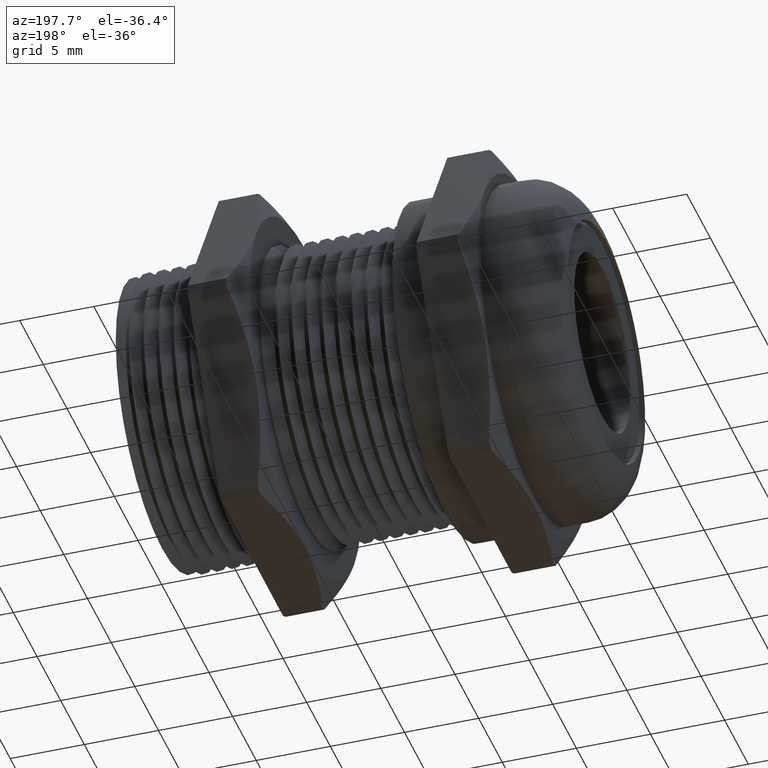
[diagram: clean part render]
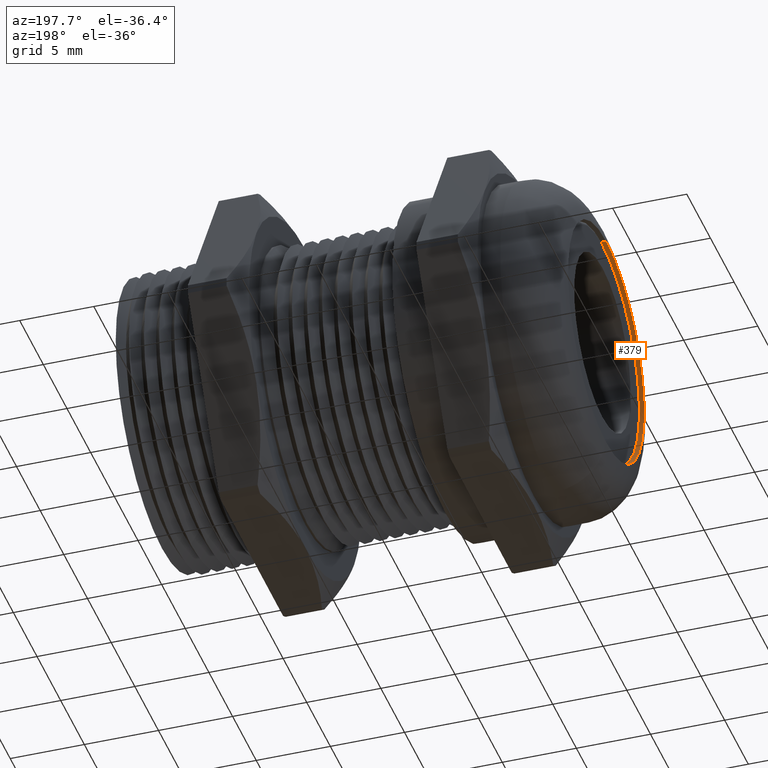
[diagram: same view with one face highlighted and labeled with its STEP entity id]
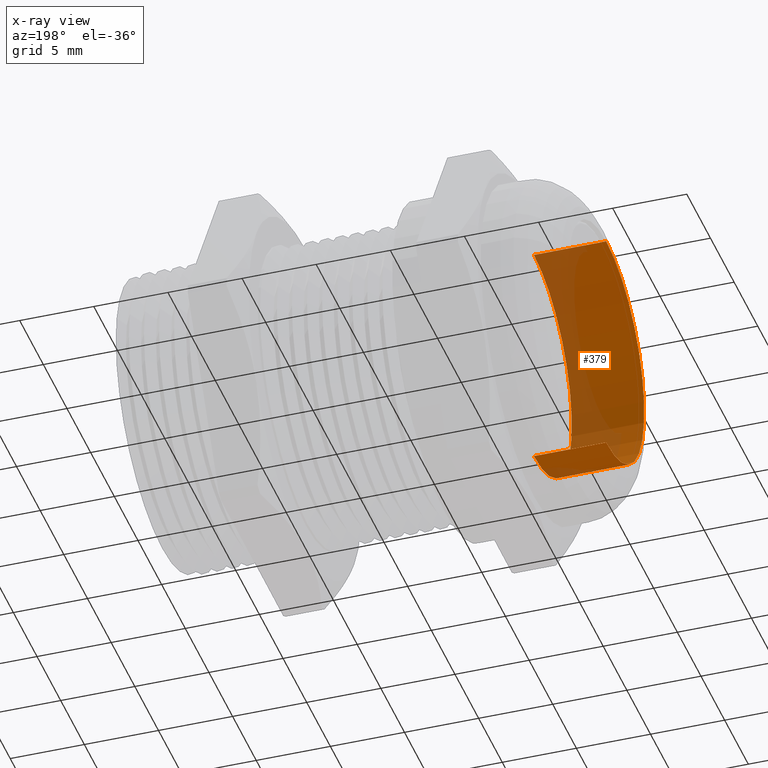
[diagram: x-ray of the same camera — body ghosted, the highlighted face saturated]
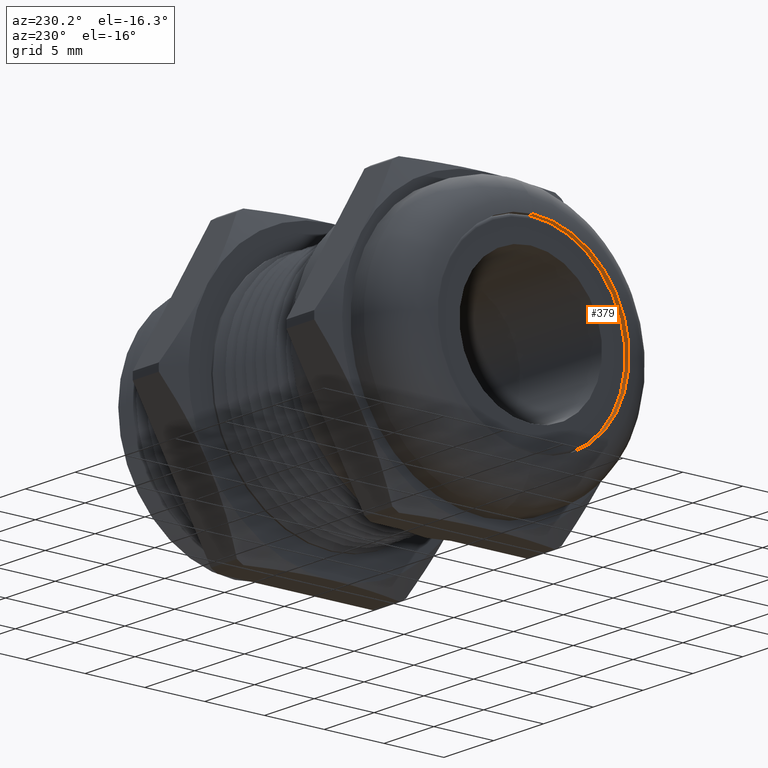
[diagram: same view with one face highlighted and labeled with its STEP entity id]
A machine part, auxiliary view. The second image highlights one B-rep face of the part: STEP entity #379.
The next image is the same camera in x-ray: the body ghosted, the highlighted face saturated — about 33% of this face is hidden behind the body in this view.
A second angle (auxiliary view) of the same face is appended — the face is thin or edge-on in the first view.
In plain terms, the highlighted cylindrical surface (partial cylindrical patch) has radius 8.0264 mm, axis along (-1, 0, 0).
Its self-contained STEP definition (entity closure, byte-faithful):
#289 = VERTEX_POINT ( 'NONE', #1472 ) ;
#292 = VERTEX_POINT ( 'NONE', #1466 ) ;
#379 = ADVANCED_FACE ( 'NONE', ( #1659 ), #1658, .F. ) ;
#380 = ORIENTED_EDGE ( 'NONE', *, *, #381, .F. ) ;
#381 = EDGE_CURVE ( 'NONE', #382, #383, #1653, .T. ) ;
#382 = VERTEX_POINT ( 'NONE', #1649 ) ;
#383 = VERTEX_POINT ( 'NONE', #1648 ) ;
#384 = ORIENTED_EDGE ( 'NONE', *, *, #385, .T. ) ;
#385 = EDGE_CURVE ( 'NONE', #382, #289, #1712, .T. ) ;
#449 = ORIENTED_EDGE ( 'NONE', *, *, #450, .T. ) ;
#450 = EDGE_CURVE ( 'NONE', #289, #292, #1786, .T. ) ;
#451 = ORIENTED_EDGE ( 'NONE', *, *, #452, .F. ) ;
#452 = EDGE_CURVE ( 'NONE', #383, #292, #1781, .T. ) ;
#471 = EDGE_LOOP ( 'NONE', ( #380, #384, #449, #451 ) ) ;
#1466 = CARTESIAN_POINT ( 'NONE',  ( -0.5899999999999999700, 0.0000000000000000000, 0.3160000000000000600 ) ) ;
#1472 = CARTESIAN_POINT ( 'NONE',  ( -0.5899999999999999700, 3.869883885305636800E-017, -0.3160000000000000600 ) ) ;
#1648 = CARTESIAN_POINT ( 'NONE',  ( -0.3979999999999999600, 0.0000000000000000000, 0.3160000000000000600 ) ) ;
#1649 = CARTESIAN_POINT ( 'NONE',  ( -0.3979999999999999600, 3.869883885305636800E-017, -0.3160000000000000600 ) ) ;
#1650 = DIRECTION ( 'NONE',  ( 0.0000000000000000000, 0.0000000000000000000, 1.000000000000000000 ) ) ;
#1651 = DIRECTION ( 'NONE',  ( -1.000000000000000000, 0.0000000000000000000, 0.0000000000000000000 ) ) ;
#1652 = AXIS2_PLACEMENT_3D ( 'NONE', #1657, #1651, #1650 ) ;
#1653 = CIRCLE ( 'NONE', #1652, 0.3160000000000000600 ) ;
#1654 = DIRECTION ( 'NONE',  ( 0.0000000000000000000, 0.0000000000000000000, 1.000000000000000000 ) ) ;
#1655 = DIRECTION ( 'NONE',  ( -1.000000000000000000, 0.0000000000000000000, 0.0000000000000000000 ) ) ;
#1656 = AXIS2_PLACEMENT_3D ( 'NONE', #1665, #1655, #1654 ) ;
#1657 = CARTESIAN_POINT ( 'NONE',  ( -0.3979999999999999600, 0.0000000000000000000, 0.0000000000000000000 ) ) ;
#1658 = CYLINDRICAL_SURFACE ( 'NONE', #1656, 0.3160000000000000600 ) ;
#1659 = FACE_OUTER_BOUND ( 'NONE', #471, .T. ) ;
#1665 = CARTESIAN_POINT ( 'NONE',  ( -2.719493435091831800, 0.0000000000000000000, 0.0000000000000000000 ) ) ;
#1709 = DIRECTION ( 'NONE',  ( -1.000000000000000000, 0.0000000000000000000, 0.0000000000000000000 ) ) ;
#1710 = VECTOR ( 'NONE', #1709, 39.37007874015748100 ) ;
#1711 = CARTESIAN_POINT ( 'NONE',  ( -2.719493435091831800, 3.869883885305636800E-017, -0.3160000000000000600 ) ) ;
#1712 = LINE ( 'NONE', #1711, #1710 ) ;
#1778 = DIRECTION ( 'NONE',  ( -1.000000000000000000, 0.0000000000000000000, 0.0000000000000000000 ) ) ;
#1779 = VECTOR ( 'NONE', #1778, 39.37007874015748100 ) ;
#1780 = CARTESIAN_POINT ( 'NONE',  ( -2.719493435091831800, 0.0000000000000000000, 0.3160000000000000600 ) ) ;
#1781 = LINE ( 'NONE', #1780, #1779 ) ;
#1782 = DIRECTION ( 'NONE',  ( 0.0000000000000000000, 0.0000000000000000000, 1.000000000000000000 ) ) ;
#1783 = DIRECTION ( 'NONE',  ( -1.000000000000000000, 0.0000000000000000000, 0.0000000000000000000 ) ) ;
#1784 = CARTESIAN_POINT ( 'NONE',  ( -0.5899999999999999700, 0.0000000000000000000, 0.0000000000000000000 ) ) ;
#1785 = AXIS2_PLACEMENT_3D ( 'NONE', #1784, #1783, #1782 ) ;
#1786 = CIRCLE ( 'NONE', #1785, 0.3160000000000000600 ) ;